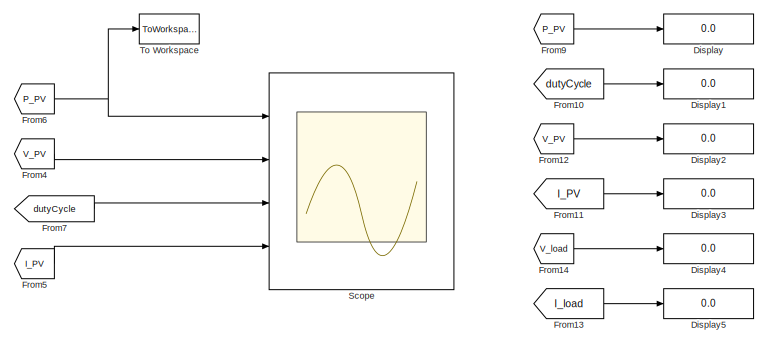
[diagram: root canvas - part 1/2, top right region]
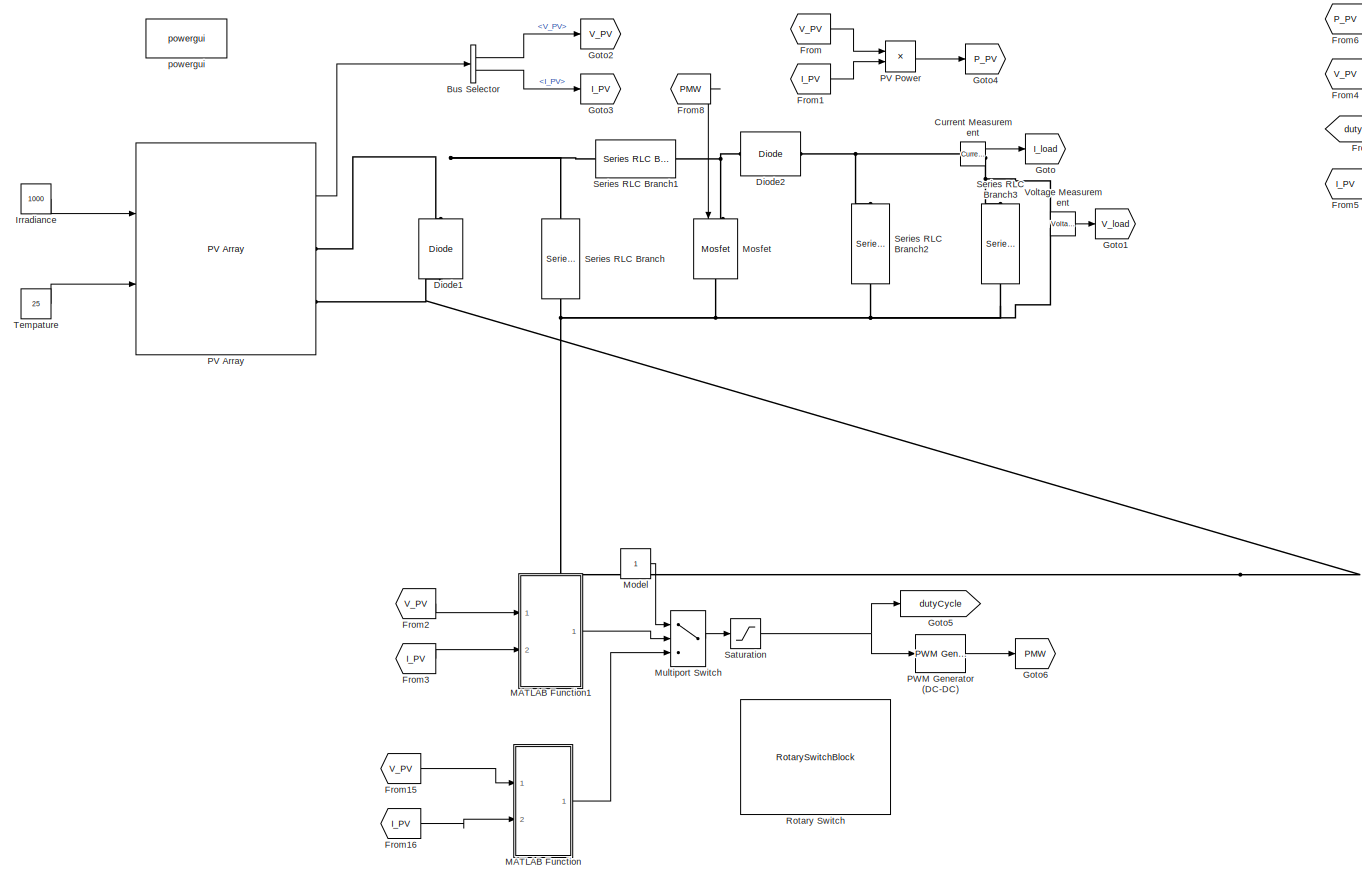
[diagram: root canvas - part 2/2, left side, full height]
MODEL slx_a029b03b47a0
KIND model
CONFIG AbsTol = auto
CONFIG EnableMultiTasking = off
CONFIG FixedStep = 0.02
CONFIG MaxStep = auto
CONFIG MinStep = auto
CONFIG RelTol = 1e-3
CONFIG SampleTimeConstraint = Unconstrained
CONFIG Solver = VariableStepAuto
CONFIG SolverName = VariableStepAuto
CONFIG StartTime = 0.0
CONFIG StopTime = 0.3
BLOCK [BusSelector] Bus Selector
  OutputAsBus = off
  OutputSignals = V_PV,I_PV
  Ports = [1, 2]
BLOCK [Reference] Current Measurement  REF=powerlib/Measurements/Current Measurement
  Ports = [0, 1, 0, 0, 0, 1, 1]
  SourceBlock = powerlib/Measurements/Current Measurement
  SourceProductBaseCode = PS
  SourceProductName = Simscape Power Systems
  SourceType = Current Measurement
  UserDataPersistent = on
BLOCK [Reference] Diode1  REF=powerlib/Power
Electronics/Diode
  Ports = [0, 0, 0, 0, 0, 1, 1]
  SourceBlock = powerlib/Power\nElectronics/Diode
  SourceProductBaseCode = PS
  SourceProductName = Simscape Power Systems
  SourceType = Diode
BLOCK [Reference] Diode2  REF=powerlib/Power
Electronics/Diode
  Ports = [0, 0, 0, 0, 0, 1, 1]
  SourceBlock = powerlib/Power\nElectronics/Diode
  SourceProductBaseCode = PS
  SourceProductName = Simscape Power Systems
  SourceType = Diode
BLOCK [Display] Display
  Decimation = 1
  Ports = [1]
BLOCK [Display] Display1
  Decimation = 1
  Ports = [1]
BLOCK [Display] Display2
  Decimation = 1
  Ports = [1]
BLOCK [Display] Display3
  Decimation = 1
  Ports = [1]
BLOCK [Display] Display4
  Decimation = 1
  Ports = [1]
BLOCK [Display] Display5
  Decimation = 1
  Ports = [1]
BLOCK [From] From
  GotoTag = V_PV
BLOCK [From] From1
  GotoTag = I_PV
BLOCK [From] From10
  GotoTag = dutyCycle
BLOCK [From] From11
  GotoTag = I_PV
BLOCK [From] From12
  GotoTag = V_PV
BLOCK [From] From13
  GotoTag = I_load
BLOCK [From] From14
  GotoTag = V_load
BLOCK [From] From15
  GotoTag = V_PV
BLOCK [From] From16
  GotoTag = I_PV
BLOCK [From] From2
  GotoTag = V_PV
BLOCK [From] From3
  GotoTag = I_PV
BLOCK [From] From4
  GotoTag = V_PV
BLOCK [From] From5
  GotoTag = I_PV
BLOCK [From] From6
  GotoTag = P_PV
BLOCK [From] From7
  GotoTag = dutyCycle
BLOCK [From] From8
  GotoTag = PMW
BLOCK [From] From9
  GotoTag = P_PV
BLOCK [Goto] Goto
  GotoTag = I_load
BLOCK [Goto] Goto1
  GotoTag = V_load
BLOCK [Goto] Goto2
  GotoTag = V_PV
BLOCK [Goto] Goto3
  GotoTag = I_PV
BLOCK [Goto] Goto4
  GotoTag = P_PV
BLOCK [Goto] Goto5
  GotoTag = dutyCycle
BLOCK [Goto] Goto6
  GotoTag = PMW
BLOCK [Constant] Irradiance
  Value = 1000
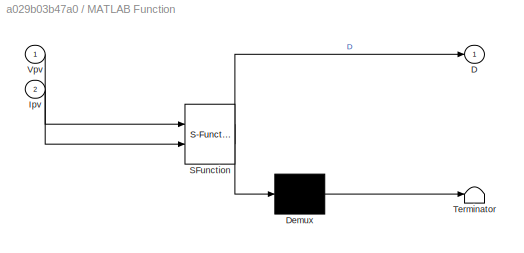
BLOCK [SubSystem] MATLAB Function
  ErrorFcn = Stateflow.Translate.translate
  PermitHierarchicalResolution = ExplicitOnly
  Ports = [2, 1]
  RequestExecContextInheritance = off
  SFBlockType = MATLAB Function
  TreatAsAtomicUnit = on
BLOCK [Demux] MATLAB Function/ Demux 
  Outputs = 1
  Ports = [1, 1]
BLOCK [S-Function] MATLAB Function/ SFunction 
  EnableBusSupport = on
  FunctionName = sf_sfun
  PortCounts = [2 2]
  Ports = [2, 2]
  SFcnIsStateOwnerBlock = off
  SFunctionDeploymentMode = off
  Tag = Stateflow S-Function MTTP_PSO 2
BLOCK [Terminator] MATLAB Function/ Terminator 
BLOCK [Outport] MATLAB Function/D
  IconDisplay = Port number
BLOCK [Inport] MATLAB Function/Ipv
  IconDisplay = Port number
  Port = 2
BLOCK [Inport] MATLAB Function/Vpv
  IconDisplay = Port number
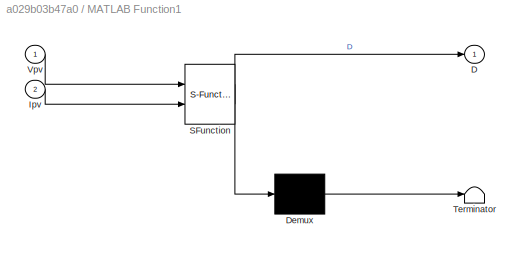
BLOCK [SubSystem] MATLAB Function1
  ErrorFcn = Stateflow.Translate.translate
  PermitHierarchicalResolution = ExplicitOnly
  Ports = [2, 1]
  RequestExecContextInheritance = off
  SFBlockType = MATLAB Function
  TreatAsAtomicUnit = on
BLOCK [Demux] MATLAB Function1/ Demux 
  Outputs = 1
  Ports = [1, 1]
BLOCK [S-Function] MATLAB Function1/ SFunction 
  EnableBusSupport = on
  FunctionName = sf_sfun
  PortCounts = [2 2]
  Ports = [2, 2]
  SFcnIsStateOwnerBlock = off
  SFunctionDeploymentMode = off
  Tag = Stateflow S-Function MTTP_PSO 1
BLOCK [Terminator] MATLAB Function1/ Terminator 
BLOCK [Outport] MATLAB Function1/D
  IconDisplay = Port number
BLOCK [Inport] MATLAB Function1/Ipv
  IconDisplay = Port number
  Port = 2
BLOCK [Inport] MATLAB Function1/Vpv
  IconDisplay = Port number
BLOCK [Constant] Model 
BLOCK [Reference] Mosfet  REF=powerlib/Power
Electronics/Mosfet
  Ports = [1, 0, 0, 0, 0, 1, 1]
  SourceBlock = powerlib/Power\nElectronics/Mosfet
  SourceProductBaseCode = PS
  SourceProductName = Simscape Power Systems
  SourceType = Mosfet
BLOCK [MultiPortSwitch] Multiport Switch
  InputSameDT = off
  Inputs = 2
  Ports = [3, 1]
  SaturateOnIntegerOverflow = off
BLOCK [Reference] PV Array  REF=re_lib/Solar/PV Array
  Ports = [2, 1, 0, 0, 0, 0, 2]
  SourceBlock = re_lib/Solar/PV Array
  SourceProductBaseCode = PS
  SourceProductName = Simscape Power Systems
  SourceType = PV array
BLOCK [Product] PV Power
  InputSameDT = off
  OutDataTypeStr = Inherit: Inherit via internal rule
  Ports = [2, 1]
  RndMeth = Floor
  SaturateOnIntegerOverflow = off
BLOCK [Reference] PWM Generator (DC-DC)  REF=powerlib_meascontrol/Pulse & Signal
Generators/PWM Generator
(DC-DC)
  Ports = [1, 1]
  SourceBlock = powerlib_meascontrol/Pulse & Signal\nGenerators/PWM Generator\n(DC-DC)
  SourceProductBaseCode = PS
  SourceProductName = Simscape Power Systems
  SourceType = PWM Generator (DC-DC)
BLOCK [RotarySwitchBlock] Rotary Switch
  WebBlockId = 82
BLOCK [Saturate] Saturation
  InputPortMap = u0
  LowerLimit = 0
  Ports = [1, 1]
  UpperLimit = 1
BLOCK [Scope] Scope
  Floating = off
  NumInputPorts = 4
  Ports = [4]
  ScopeSpecificationString = Simulink.scopes.TimeScopeBlockCfg('CurrentConfiguration', extmgr.ConfigurationSet(extmgr.Configuration('Core','General UI',true),extmgr.Configuration('Core','Source UI',true),extmgr.Configuration('Sources','WiredSimulink',true),extmgr.Configuration('Visuals','Time Domain',true,'SerializedDisplays',{struct('MinYLimReal','-11.48626','MaxYLimReal','64.02565','YLabelReal','','MinYLimMag','0.00000','Ma...<+3431ch>
BLOCK [Reference] Series RLC Branch  REF=powerlib/Elements/Series RLC Branch
  Ports = [0, 0, 0, 0, 0, 1, 1]
  SourceBlock = powerlib/Elements/Series RLC Branch
  SourceProductBaseCode = PS
  SourceProductName = Simscape Power Systems
  SourceType = Series RLC Branch
BLOCK [Reference] Series RLC Branch1  REF=powerlib/Elements/Series RLC Branch
  Ports = [0, 0, 0, 0, 0, 1, 1]
  SourceBlock = powerlib/Elements/Series RLC Branch
  SourceProductBaseCode = PS
  SourceProductName = Simscape Power Systems
  SourceType = Series RLC Branch
BLOCK [Reference] Series RLC Branch2  REF=powerlib/Elements/Series RLC Branch
  Ports = [0, 0, 0, 0, 0, 1, 1]
  SourceBlock = powerlib/Elements/Series RLC Branch
  SourceProductBaseCode = PS
  SourceProductName = Simscape Power Systems
  SourceType = Series RLC Branch
BLOCK [Reference] Series RLC Branch3  REF=powerlib/Elements/Series RLC Branch
  Ports = [0, 0, 0, 0, 0, 1, 1]
  SourceBlock = powerlib/Elements/Series RLC Branch
  SourceProductBaseCode = PS
  SourceProductName = Simscape Power Systems
  SourceType = Series RLC Branch
BLOCK [Constant] Tempature
  Value = 25
BLOCK [ToWorkspace] To Workspace
  FixptAsFi = on
  MaxDataPoints = inf
  Ports = [1]
  SampleTime = -1
  Save2DSignal = 3-D array (concatenate along third dimension)
  SaveFormat = Timeseries
  VariableName = GSA
BLOCK [Reference] Voltage Measurement  REF=powerlib/Measurements/Voltage Measurement
  Ports = [0, 1, 0, 0, 0, 2]
  SourceBlock = powerlib/Measurements/Voltage Measurement
  SourceProductBaseCode = PS
  SourceProductName = Simscape Power Systems
  SourceType = Voltage Measurement
  UserDataPersistent = on
BLOCK [Reference] powergui  REF=powerlib/powergui
  Ports = []
  Priority = 1
  SourceBlock = powerlib/powergui
  SourceProductBaseCode = PS
  SourceProductName = Simscape Power Systems
  SourceType = PSB option menu block
LINE Bus Selector:1 -> Goto2:1
LINE Bus Selector:2 -> Goto3:1
LINE Current Measurement:1 -> Goto:1
LINE From10:1 -> Display1:1
LINE From11:1 -> Display3:1
LINE From12:1 -> Display2:1
LINE From13:1 -> Display5:1
LINE From14:1 -> Display4:1
LINE From15:1 -> MATLAB Function:1
LINE From16:1 -> MATLAB Function:2
LINE From1:1 -> PV Power:2
LINE From2:1 -> MATLAB Function1:1
LINE From3:1 -> MATLAB Function1:2
LINE From4:1 -> Scope:2
LINE From5:1 -> Scope:4
NET From6:1 -> Scope:1, To Workspace:1
LINE From7:1 -> Scope:3
LINE From8:1 -> Mosfet:1
LINE From9:1 -> Display:1
LINE From:1 -> PV Power:1
LINE Irradiance:1 -> PV Array:1
LINE MATLAB Function1:1 -> Multiport Switch:2
LINE MATLAB Function:1 -> Multiport Switch:3
LINE Model :1 -> Multiport Switch:1
LINE Multiport Switch:1 -> Saturation:1
LINE PV Array:1 -> Bus Selector:1
LINE PV Power:1 -> Goto4:1
LINE PWM Generator (DC-DC):1 -> Goto6:1
NET Saturation:1 -> Goto5:1, PWM Generator (DC-DC):1
LINE Tempature:1 -> PV Array:2
LINE Voltage Measurement:1 -> Goto1:1
PNET net1: Current Measurement:LConn1 -- Diode2:RConn1 -- Series RLC Branch2:LConn1
PNET net2: Current Measurement:RConn1 -- Series RLC Branch3:LConn1 -- Voltage Measurement:LConn1
PNET net3: Diode1:LConn1 -- Mosfet:RConn1 -- PV Array:RConn2 -- Series RLC Branch2:RConn1 -- Series RLC Branch3:RConn1 -- Series RLC Branch:RConn1 -- Voltage Measurement:LConn2
PNET net4: Diode1:RConn1 -- PV Array:RConn1 -- Series RLC Branch1:LConn1 -- Series RLC Branch:LConn1
PNET net5: Diode2:LConn1 -- Mosfet:LConn1 -- Series RLC Branch1:RConn1
note: NET lines group one-source signal fan-out (src -> all destinations, sorted); 1:1 wires keep LINE; PNET lines group multi-terminal physical nets as a canonical sorted terminal list (undirected conserving connections); 2-terminal nets keep the pairwise PLINE form
CHART MATLAB Function1 states=1 transitions=1
  STATE_LABEL 'eML_blk_kernel()'
  STATE_LABEL "SCRIPT:\nfunction D = GSA(Vpv,Ipv)\ncoder.extrinsic('randi')\npersistent u;\npersistent dcurrent;%store current duty cycle\npersistent pbest;%store local best dc for power\npersistent force; %store force\npersistent acceleration; %store acceleration\npersistent mass; % mass\npersistent q; %  strength of mass\npersistent p; %  power for each particle\npersistent p_current; %  power current for each particle\np...<+3130ch>"
CHART MATLAB Function states=1 transitions=1
  STATE_LABEL 'eML_blk_kernel()'
  STATE_LABEL "SCRIPT:\nfunction D = PSO(Vpv, Ipv)\n    coder.extrinsic('randi')\n    persistent localbest globalbest k p dc Pbest Pprev dcurrent u v temp;\n    c1 = 1;\n    c2 = 2;\n    P = Ipv * Vpv;\n    if isempty(globalbest)\n        k = 0;\n        dc = zeros(3,1);\n        dc(1)=randi( [5 330])/1000;\n        dc(2)=randi( [330 660])/1000;\n        dc(3)=randi( [660 995])/1000;\n        p = zeros(3,1);\n        localbes...<+1574ch>"
